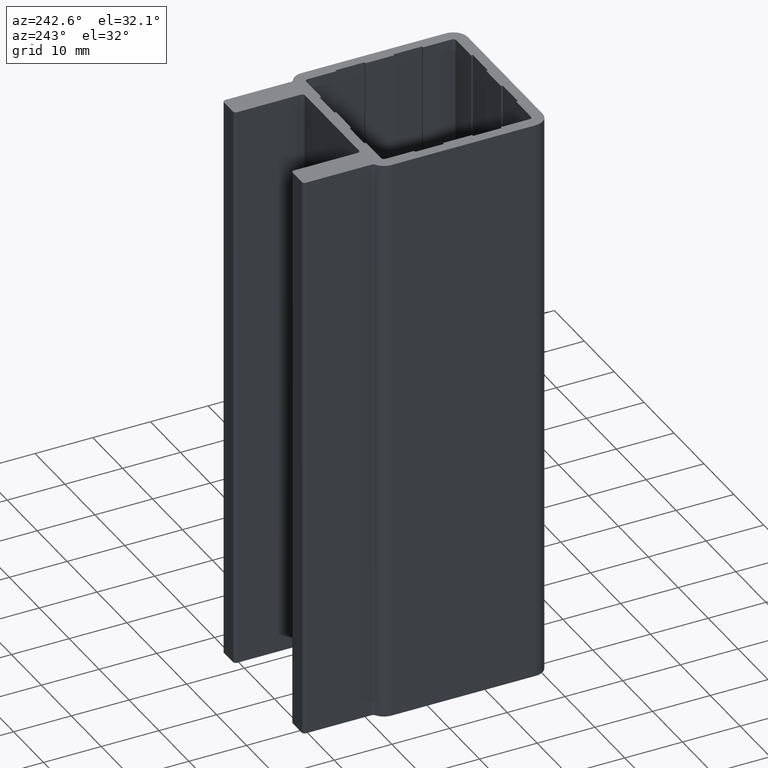
[diagram: clean part render]
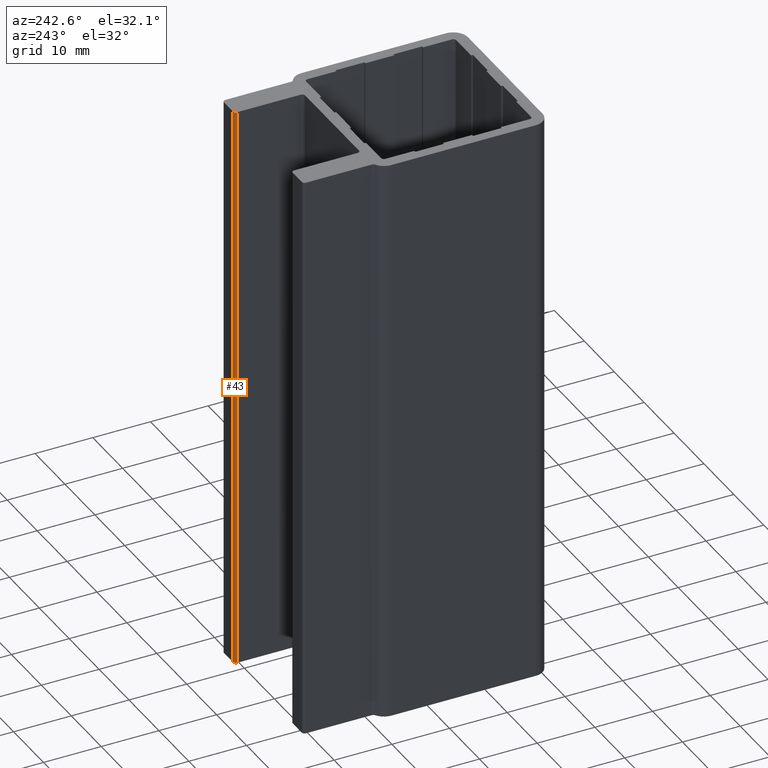
[diagram: same view with one face highlighted and labeled with its STEP entity id]
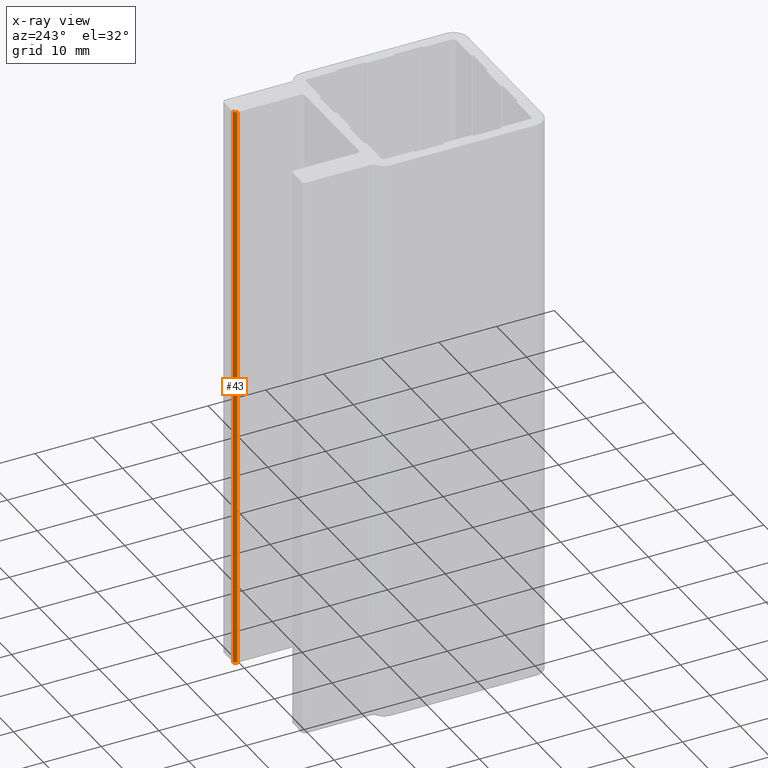
[diagram: x-ray of the same camera — body ghosted, the highlighted face saturated]
A machine part, auxiliary view. The second image highlights one B-rep face of the part: STEP entity #43.
The next image is the same camera in x-ray: the body ghosted, the highlighted face saturated — about 0% of this face is hidden behind the body in this view.
In plain terms, the highlighted cylindrical surface (edge-blend (fillet) strip) has radius 0.5 mm, axis along (0, 0, 1).
Its self-contained STEP definition (entity closure, byte-faithful):
#2=CARTESIAN_POINT('',(10.000000000005571,41.500000000124601,100.0));
#3=DIRECTION('',(0.0,0.0,1.0));
#4=DIRECTION('',(0.0,1.0,0.0));
#5=AXIS2_PLACEMENT_3D('',#2,#3,#4);
#6=CYLINDRICAL_SURFACE('',#5,0.500000000000000);
#7=CARTESIAN_POINT('',(10.000000000005571,42.000000000124601,100.0));
#8=VERTEX_POINT('',#7);
#9=CARTESIAN_POINT('',(10.000000000005571,42.000000000124601,0.0));
#10=VERTEX_POINT('',#9);
#11=CARTESIAN_POINT('',(10.000000000005571,42.000000000124601,100.0));
#12=DIRECTION('',(0.0,0.0,-1.0));
#13=VECTOR('',#12,100.0);
#14=LINE('',#11,#13);
#15=EDGE_CURVE('',#8,#10,#14,.T.);
#16=ORIENTED_EDGE('',*,*,#15,.T.);
#17=CARTESIAN_POINT('',(9.500000000005571,41.500000000124601,0.0));
#18=VERTEX_POINT('',#17);
#19=CARTESIAN_POINT('',(10.000000000005571,41.500000000124601,0.0));
#20=DIRECTION('',(0.0,0.0,1.0));
#21=DIRECTION('',(0.0,1.0,0.0));
#22=AXIS2_PLACEMENT_3D('',#19,#20,#21);
#23=CIRCLE('',#22,0.500000000000000);
#24=EDGE_CURVE('',#10,#18,#23,.T.);
#25=ORIENTED_EDGE('',*,*,#24,.T.);
#26=CARTESIAN_POINT('',(9.500000000005571,41.500000000124601,100.0));
#27=VERTEX_POINT('',#26);
#28=CARTESIAN_POINT('',(9.500000000005571,41.500000000124601,100.0));
#29=DIRECTION('',(0.0,0.0,-1.0));
#30=VECTOR('',#29,100.0);
#31=LINE('',#28,#30);
#32=EDGE_CURVE('',#27,#18,#31,.T.);
#33=ORIENTED_EDGE('',*,*,#32,.F.);
#34=CARTESIAN_POINT('',(10.000000000005571,41.500000000124601,100.0));
#35=DIRECTION('',(0.0,0.0,1.0));
#36=DIRECTION('',(0.0,1.0,0.0));
#37=AXIS2_PLACEMENT_3D('',#34,#35,#36);
#38=CIRCLE('',#37,0.500000000000000);
#39=EDGE_CURVE('',#8,#27,#38,.T.);
#40=ORIENTED_EDGE('',*,*,#39,.F.);
#41=EDGE_LOOP('',(#16,#25,#33,#40));
#42=FACE_OUTER_BOUND('',#41,.T.);
#43=ADVANCED_FACE('',(#42),#6,.T.);